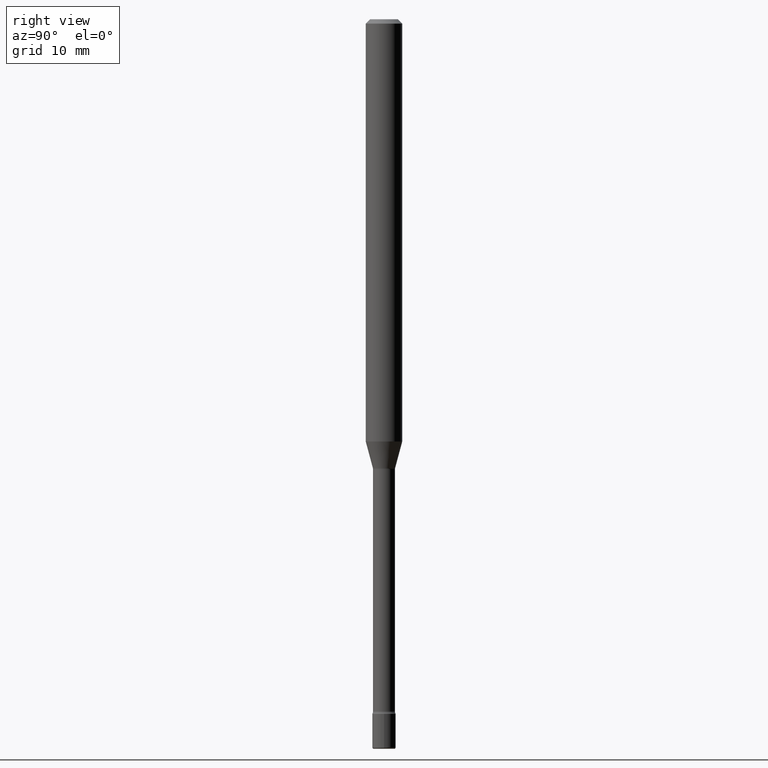
[diagram: clean part render]
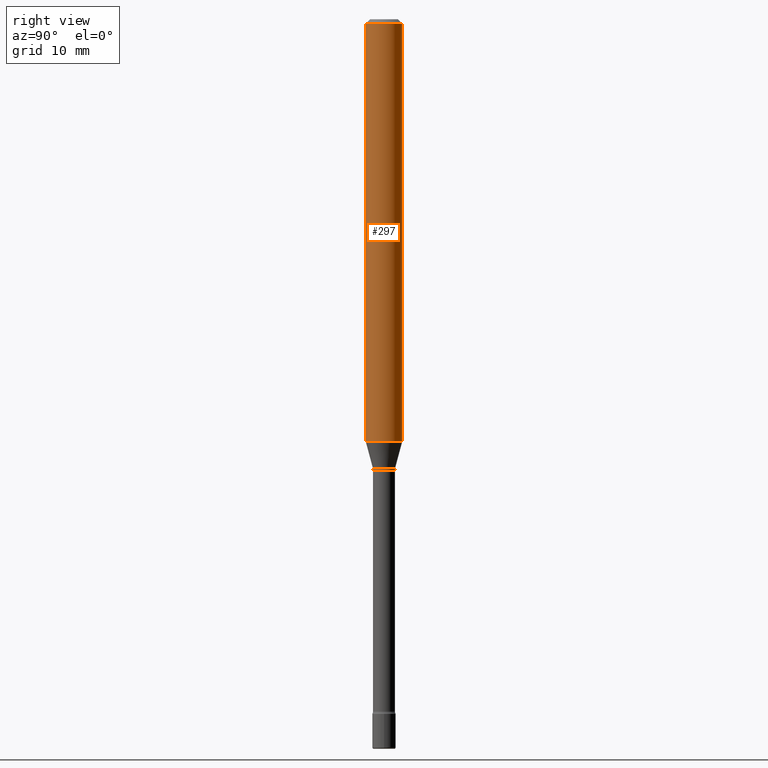
[diagram: same view with one face highlighted and labeled with its STEP entity id]
A machine part, right view. The second image highlights one B-rep face of the part: STEP entity #297.
In plain terms, the highlighted cylindrical surface (edge-blend (fillet) strip) has radius 1.5875 mm, axis along (-0, 0, 1).
Its self-contained STEP definition (entity closure, byte-faithful):
#12 = EDGE_CURVE ( 'NONE', #425, #402, #155, .T. ) ;
#43 = EDGE_CURVE ( 'NONE', #183, #494, #463, .T. ) ;
#72 = ORIENTED_EDGE ( 'NONE', *, *, #209, .F. ) ;
#73 = VECTOR ( 'NONE', #393, 39.37007874015748143 ) ;
#79 = CARTESIAN_POINT ( 'NONE',  ( 4.440892098500625669E-16, 0.06250000000000000000, 2.598420576427910934E-16 ) ) ;
#89 = CARTESIAN_POINT ( 'NONE',  ( 3.667972644630171939E-31, -5.237552189962929655E-17, -0.01500000000000002720 ) ) ;
#104 = EDGE_LOOP ( 'NONE', ( #343, #461, #72, #117 ) ) ;
#114 = EDGE_CURVE ( 'NONE', #425, #183, #408, .T. ) ;
#117 = ORIENTED_EDGE ( 'NONE', *, *, #12, .F. ) ;
#147 = FACE_OUTER_BOUND ( 'NONE', #104, .T. ) ;
#155 = LINE ( 'NONE', #557, #389 ) ;
#170 = CARTESIAN_POINT ( 'NONE',  ( -4.364351673553565651E-16, -0.06250000000000509315, -1.447071934891535072 ) ) ;
#183 = VERTEX_POINT ( 'NONE', #276 ) ;
#192 = DIRECTION ( 'NONE',  ( -6.982962677686265922E-15, -1.000000000000000000, 3.483106191921935554E-15 ) ) ;
#197 = AXIS2_PLACEMENT_3D ( 'NONE', #89, #325, #192 ) ;
#201 = CARTESIAN_POINT ( 'NONE',  ( 4.440892098500982135E-16, 0.06249999999999995143, -0.01500000000000024578 ) ) ;
#209 = EDGE_CURVE ( 'NONE', #402, #494, #253, .T. ) ;
#228 = AXIS2_PLACEMENT_3D ( 'NONE', #555, #416, #284 ) ;
#253 = CIRCLE ( 'NONE', #197, 0.06250000000000000000 ) ;
#276 = CARTESIAN_POINT ( 'NONE',  ( 4.440892098500976219E-16, 0.06249999999999491379, -1.447071934891535516 ) ) ;
#284 = DIRECTION ( 'NONE',  ( -6.982962677686265922E-15, -1.000000000000000000, 4.370956789862821150E-15 ) ) ;
#286 = CYLINDRICAL_SURFACE ( 'NONE', #474, 0.06250000000000000000 ) ;
#297 = ADVANCED_FACE ( 'NONE', ( #147 ), #286, .T. ) ;
#325 = DIRECTION ( 'NONE',  ( -2.445315096420110410E-29, 3.491701459975279518E-15, 1.000000000000000000 ) ) ;
#343 = ORIENTED_EDGE ( 'NONE', *, *, #114, .T. ) ;
#376 = DIRECTION ( 'NONE',  ( -6.982962677686265922E-15, -1.000000000000000000, 3.491701459975279518E-15 ) ) ;
#389 = VECTOR ( 'NONE', #510, 39.37007874015748143 ) ;
#393 = DIRECTION ( 'NONE',  ( -2.445315096420110130E-29, 3.491701459975279518E-15, 1.000000000000000000 ) ) ;
#402 = VERTEX_POINT ( 'NONE', #434 ) ;
#408 = CIRCLE ( 'NONE', #228, 0.06250000000000000000 ) ;
#416 = DIRECTION ( 'NONE',  ( -2.445315096420110410E-29, 3.491701459975279518E-15, 1.000000000000000000 ) ) ;
#425 = VERTEX_POINT ( 'NONE', #170 ) ;
#434 = CARTESIAN_POINT ( 'NONE',  ( -4.364351673553912750E-16, -0.06250000000000005551, -0.01499999999999981036 ) ) ;
#451 = DIRECTION ( 'NONE',  ( -2.445315096420110410E-29, 3.491701459975279518E-15, 1.000000000000000000 ) ) ;
#461 = ORIENTED_EDGE ( 'NONE', *, *, #43, .T. ) ;
#463 = LINE ( 'NONE', #79, #73 ) ;
#474 = AXIS2_PLACEMENT_3D ( 'NONE', #502, #451, #376 ) ;
#494 = VERTEX_POINT ( 'NONE', #201 ) ;
#502 = CARTESIAN_POINT ( 'NONE',  ( -1.169113584055446105E-44, 1.669184350826100908E-30, 4.780733988912460139E-16 ) ) ;
#510 = DIRECTION ( 'NONE',  ( -2.445315096420110130E-29, 3.491701459975279518E-15, 1.000000000000000000 ) ) ;
#555 = CARTESIAN_POINT ( 'NONE',  ( 3.538546847996129804E-29, -5.052743187750026266E-15, -1.447071934891535294 ) ) ;
#557 = CARTESIAN_POINT ( 'NONE',  ( -4.364351673553916201E-16, -0.06250000000000000000, 6.963047401397009838E-16 ) ) ;